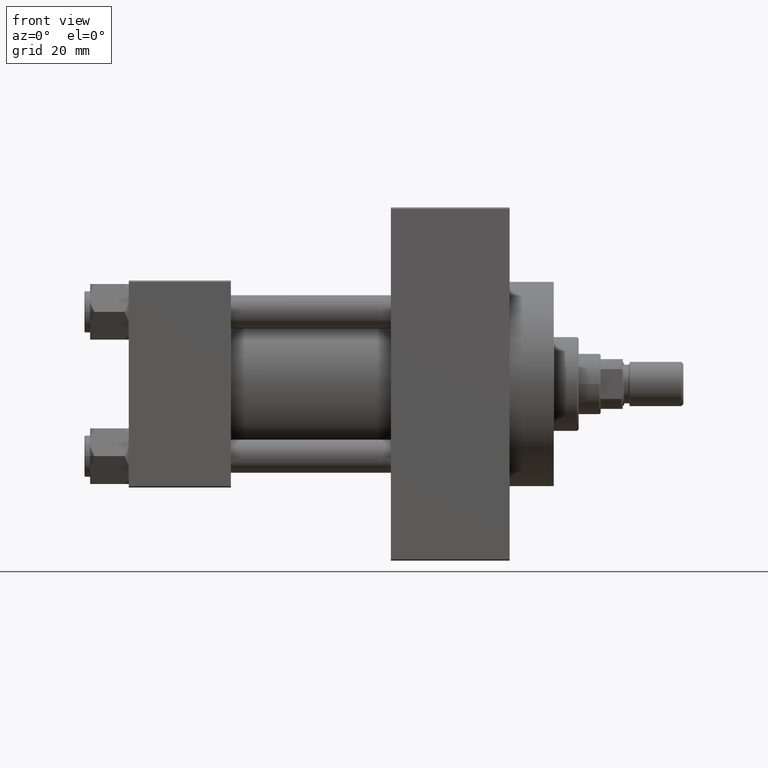
[diagram: clean part render]
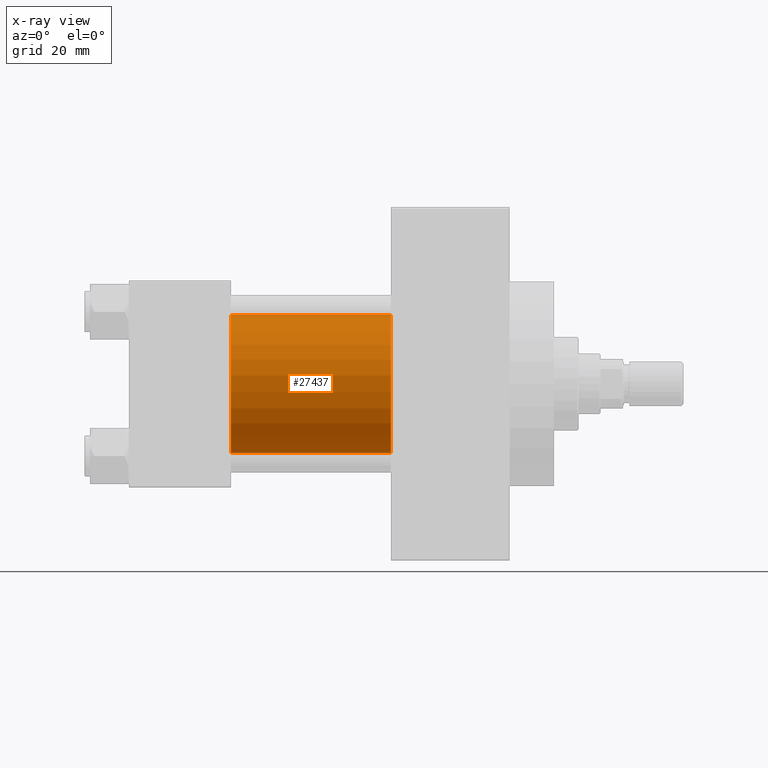
[diagram: x-ray — body ghosted, one internal face saturated and labeled with its STEP entity id]
A machine part, front view, then the same camera in x-ray: the body is ghosted and one INTERNAL B-rep face — a face not visible from any outside direction — is saturated and labeled: STEP entity #27437.
In plain terms, the highlighted cylindrical surface (partial cylindrical patch) has radius 25 mm, axis along (-1, -0, -0).
Its self-contained STEP definition (entity closure, byte-faithful):
#441 = EDGE_CURVE ( 'NONE', #2892, #15432, #28379, .T. ) ;
#519 = DIRECTION ( 'NONE',  ( 0.000000000000000000, 0.000000000000000000, 1.000000000000000000 ) ) ;
#778 = CARTESIAN_POINT ( 'NONE',  ( 95.00000000000000000, 4.595317839031718093E-16, -25.00000000000000000 ) ) ;
#2892 = VERTEX_POINT ( 'NONE', #778 ) ;
#4298 = DIRECTION ( 'NONE',  ( -1.000000000000000000, -0.000000000000000000, -0.000000000000000000 ) ) ;
#5014 = CIRCLE ( 'NONE', #25197, 25.00000000000000000 ) ;
#8102 = EDGE_CURVE ( 'NONE', #15415, #15432, #5014, .T. ) ;
#10158 = CARTESIAN_POINT ( 'NONE',  ( 37.00000000000000000, -2.602085213965210642E-15, 0.000000000000000000 ) ) ;
#15415 = VERTEX_POINT ( 'NONE', #28657 ) ;
#15432 = VERTEX_POINT ( 'NONE', #32168 ) ;
#15544 = CARTESIAN_POINT ( 'NONE',  ( 95.00000000000000000, -2.602085213965210642E-15, 0.000000000000000000 ) ) ;
#16832 = CARTESIAN_POINT ( 'NONE',  ( 95.00000000000000000, -2.602085213965210642E-15, 0.000000000000000000 ) ) ;
#20607 = FACE_OUTER_BOUND ( 'NONE', #26987, .T. ) ;
#22101 = ORIENTED_EDGE ( 'NONE', *, *, #31708, .T. ) ;
#23997 = CARTESIAN_POINT ( 'NONE',  ( 95.00000000000000000, -2.602085213965210642E-15, 25.00000000000000000 ) ) ;
#24853 = CARTESIAN_POINT ( 'NONE',  ( 95.00000000000000000, 4.595317839031718093E-16, -25.00000000000000000 ) ) ;
#25197 = AXIS2_PLACEMENT_3D ( 'NONE', #10158, #48877, #25489 ) ;
#25489 = DIRECTION ( 'NONE',  ( 0.000000000000000000, 0.000000000000000000, -1.000000000000000000 ) ) ;
#26185 = AXIS2_PLACEMENT_3D ( 'NONE', #16832, #4298, #519 ) ;
#26987 = EDGE_LOOP ( 'NONE', ( #22101, #44719, #39415, #37479 ) ) ;
#27117 = DIRECTION ( 'NONE',  ( 0.000000000000000000, 0.000000000000000000, -1.000000000000000000 ) ) ;
#27437 = ADVANCED_FACE ( 'NONE', ( #20607 ), #38741, .F. ) ;
#27778 = DIRECTION ( 'NONE',  ( -1.000000000000000000, -0.000000000000000000, -0.000000000000000000 ) ) ;
#28379 = LINE ( 'NONE', #24853, #49019 ) ;
#28626 = CIRCLE ( 'NONE', #40665, 25.00000000000000000 ) ;
#28657 = CARTESIAN_POINT ( 'NONE',  ( 37.00000000000000000, -2.602085213965210642E-15, 25.00000000000000000 ) ) ;
#28708 = VERTEX_POINT ( 'NONE', #28939 ) ;
#28939 = CARTESIAN_POINT ( 'NONE',  ( 95.00000000000000000, -2.602085213965210642E-15, 25.00000000000000000 ) ) ;
#31669 = VECTOR ( 'NONE', #27778, 1000.000000000000000 ) ;
#31708 = EDGE_CURVE ( 'NONE', #28708, #2892, #28626, .T. ) ;
#32168 = CARTESIAN_POINT ( 'NONE',  ( 37.00000000000000000, 4.595317839031718093E-16, -25.00000000000000000 ) ) ;
#34168 = DIRECTION ( 'NONE',  ( 1.000000000000000000, 0.000000000000000000, 0.000000000000000000 ) ) ;
#37479 = ORIENTED_EDGE ( 'NONE', *, *, #46767, .F. ) ;
#37861 = LINE ( 'NONE', #23997, #31669 ) ;
#38741 = CYLINDRICAL_SURFACE ( 'NONE', #26185, 25.00000000000000000 ) ;
#39415 = ORIENTED_EDGE ( 'NONE', *, *, #8102, .F. ) ;
#39961 = DIRECTION ( 'NONE',  ( -1.000000000000000000, -0.000000000000000000, -0.000000000000000000 ) ) ;
#40665 = AXIS2_PLACEMENT_3D ( 'NONE', #15544, #34168, #27117 ) ;
#44719 = ORIENTED_EDGE ( 'NONE', *, *, #441, .T. ) ;
#46767 = EDGE_CURVE ( 'NONE', #28708, #15415, #37861, .T. ) ;
#48877 = DIRECTION ( 'NONE',  ( 1.000000000000000000, 0.000000000000000000, 0.000000000000000000 ) ) ;
#49019 = VECTOR ( 'NONE', #39961, 1000.000000000000000 ) ;